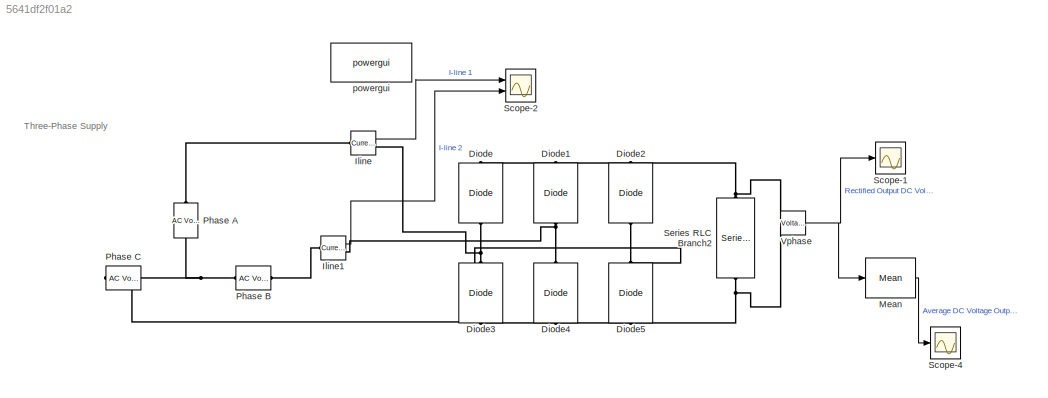
MODEL slx_5641df2f01a2
KIND model
CONFIG AbsTol = auto
CONFIG EnableMultiTasking = off
CONFIG FixedStep = 1e-05
CONFIG MaxStep = auto
CONFIG MinStep = auto
CONFIG RelTol = 1e-3
CONFIG SampleTimeConstraint = Unconstrained
CONFIG Solver = FixedStepAuto
CONFIG SolverName = FixedStepAuto
CONFIG StartTime = 0.0
CONFIG StopTime = 0.06
BLOCK [Reference] Diode  REF=powerlib/Power
Electronics/Diode
  NameLocation = right
  Ports = [0, 0, 0, 0, 0, 1, 1]
  SourceBlock = powerlib/Power\nElectronics/Diode
  SourceProductBaseCode = PS
  SourceType = Diode
BLOCK [Reference] Diode1  REF=powerlib/Power
Electronics/Diode
  NameLocation = right
  Ports = [0, 0, 0, 0, 0, 1, 1]
  SourceBlock = powerlib/Power\nElectronics/Diode
  SourceProductBaseCode = PS
  SourceType = Diode
BLOCK [Reference] Diode2  REF=powerlib/Power
Electronics/Diode
  NameLocation = right
  Ports = [0, 0, 0, 0, 0, 1, 1]
  SourceBlock = powerlib/Power\nElectronics/Diode
  SourceProductBaseCode = PS
  SourceType = Diode
BLOCK [Reference] Diode3  REF=powerlib/Power
Electronics/Diode
  NameLocation = right
  Ports = [0, 0, 0, 0, 0, 1, 1]
  SourceBlock = powerlib/Power\nElectronics/Diode
  SourceProductBaseCode = PS
  SourceType = Diode
BLOCK [Reference] Diode4  REF=powerlib/Power
Electronics/Diode
  NameLocation = right
  Ports = [0, 0, 0, 0, 0, 1, 1]
  SourceBlock = powerlib/Power\nElectronics/Diode
  SourceProductBaseCode = PS
  SourceType = Diode
BLOCK [Reference] Diode5  REF=powerlib/Power
Electronics/Diode
  NameLocation = right
  Ports = [0, 0, 0, 0, 0, 1, 1]
  SourceBlock = powerlib/Power\nElectronics/Diode
  SourceProductBaseCode = PS
  SourceType = Diode
BLOCK [Reference] Iline  REF=powerlib/Measurements/Current Measurement
  Ports = [0, 1, 0, 0, 0, 1, 1]
  SourceBlock = powerlib/Measurements/Current Measurement
  SourceProductBaseCode = PS
  SourceType = Current Measurement
  UserDataPersistent = on
BLOCK [Reference] Iline1  REF=powerlib/Measurements/Current Measurement
  Ports = [0, 1, 0, 0, 0, 1, 1]
  SourceBlock = powerlib/Measurements/Current Measurement
  SourceProductBaseCode = PS
  SourceType = Current Measurement
  UserDataPersistent = on
BLOCK [Reference] Mean  REF=powerlib_meascontrol/Measurements/Mean
  Ports = [1, 1]
  SourceBlock = powerlib_meascontrol/Measurements/Mean
  SourceProductBaseCode = PS
  SourceType = Mean
BLOCK [Reference] Phase A  REF=powerlib/Electrical
Sources/AC Voltage Source
  NameLocation = right
  Ports = [0, 0, 0, 0, 0, 1, 1]
  SourceBlock = powerlib/Electrical\nSources/AC Voltage Source
  SourceProductBaseCode = PS
  SourceType = AC Voltage Source
BLOCK [Reference] Phase B  REF=powerlib/Electrical
Sources/AC Voltage Source
  Ports = [0, 0, 0, 0, 0, 1, 1]
  SourceBlock = powerlib/Electrical\nSources/AC Voltage Source
  SourceProductBaseCode = PS
  SourceType = AC Voltage Source
BLOCK [Reference] Phase C  REF=powerlib/Electrical
Sources/AC Voltage Source
  NameLocation = top
  Ports = [0, 0, 0, 0, 0, 1, 1]
  SourceBlock = powerlib/Electrical\nSources/AC Voltage Source
  SourceProductBaseCode = PS
  SourceType = AC Voltage Source
BLOCK [Scope] Scope-1
  Floating = off
  NumInputPorts = 1
  Ports = [1]
  ScopeSpecificationString = Simulink.scopes.TimeScopeBlockCfg('CurrentConfiguration', extmgr.ConfigurationSet(extmgr.Configuration('Core','General UI',true,'FigureColor',[1 1 1]),extmgr.Configuration('Core','Source UI',true),extmgr.Configuration('Sources','WiredSimulink',true),extmgr.Configuration('Visuals','Time Domain',true,'TimeAxisLabels','All','SerializedDisplays',{struct('MinYLimReal','0','MaxYLimReal','650','YLabelRea...<+2391ch>
BLOCK [Scope] Scope-2
  Floating = off
  NumInputPorts = 2
  Ports = [2]
  ScopeSpecificationString = Simulink.scopes.TimeScopeBlockCfg('CurrentConfiguration', extmgr.ConfigurationSet(extmgr.Configuration('Core','General UI',true,'FigureColor',[1 1 1]),extmgr.Configuration('Core','Source UI',true),extmgr.Configuration('Sources','WiredSimulink',true,'DataLoggingVariableName','ScopeData1'),extmgr.Configuration('Visuals','Time Domain',true,'PlotType','Line','SerializedDisplays',{struct('MinYLimReal',...<+2443ch>
BLOCK [Scope] Scope-4
  Floating = off
  NumInputPorts = 1
  Ports = [1]
  ScopeSpecificationString = Simulink.scopes.TimeScopeBlockCfg('CurrentConfiguration', extmgr.ConfigurationSet(extmgr.Configuration('Core','General UI',true,'FigureColor',[1 1 1]),extmgr.Configuration('Core','Source UI',true),extmgr.Configuration('Sources','WiredSimulink',true,'DataLoggingVariableName','ScopeData2'),extmgr.Configuration('Visuals','Time Domain',true,'TimeAxisLabels','All','SerializedDisplays',{struct('MinYLimR...<+2449ch>
BLOCK [Reference] Series RLC Branch2  REF=powerlib/Elements/Series RLC Branch
  NameLocation = right
  Ports = [0, 0, 0, 0, 0, 1, 1]
  SourceBlock = powerlib/Elements/Series RLC Branch
  SourceProductBaseCode = PS
  SourceType = Series RLC Branch
BLOCK [Reference] Vphase  REF=powerlib/Measurements/Voltage Measurement
  Ports = [0, 1, 0, 0, 0, 2]
  SourceBlock = powerlib/Measurements/Voltage Measurement
  SourceProductBaseCode = PS
  SourceType = Voltage Measurement
  UserDataPersistent = on
BLOCK [Reference] powergui  REF=powerlib/powergui
  Ports = []
  Priority = 1
  SourceBlock = powerlib/powergui
  SourceProductBaseCode = PS
  SourceType = PSB option menu block
ANNOTATION (root): Three-Phase Supply
LINE Iline1:1 -> Scope-2:2
LINE Iline:1 -> Scope-2:1
LINE Mean:1 -> Scope-4:1
NET Vphase:1 -> Mean:1, Scope-1:1
PNET net1: Diode1:LConn1 -- Diode4:RConn1 -- Iline1:RConn1
PNET net2: Diode1:RConn1 -- Diode2:RConn1 -- Diode:RConn1 -- Series RLC Branch2:RConn1 -- Vphase:LConn1
PNET net3: Diode2:LConn1 -- Diode5:RConn1 -- Phase C:RConn1
PNET net4: Diode3:LConn1 -- Diode4:LConn1 -- Diode5:LConn1 -- Series RLC Branch2:LConn1 -- Vphase:LConn2
PNET net5: Diode3:RConn1 -- Diode:LConn1 -- Iline:RConn1
PLINE Iline1:LConn1 -- Phase B:RConn1
PLINE Iline:LConn1 -- Phase A:RConn1
PNET net6: Phase A:LConn1 -- Phase B:LConn1 -- Phase C:LConn1
note: NET lines group one-source signal fan-out (src -> all destinations, sorted); 1:1 wires keep LINE; PNET lines group multi-terminal physical nets as a canonical sorted terminal list (undirected conserving connections); 2-terminal nets keep the pairwise PLINE form
